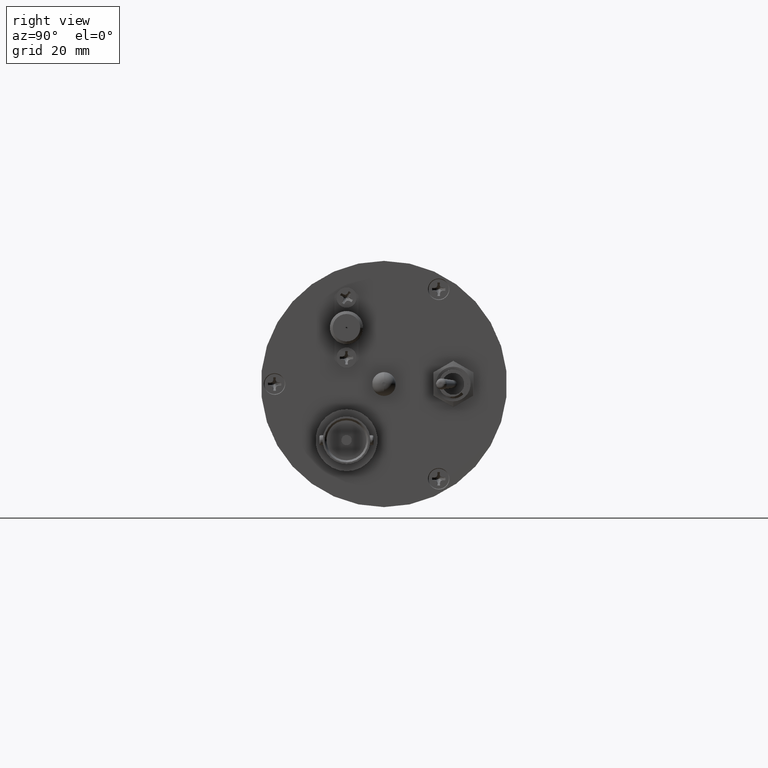
[diagram: clean part render]
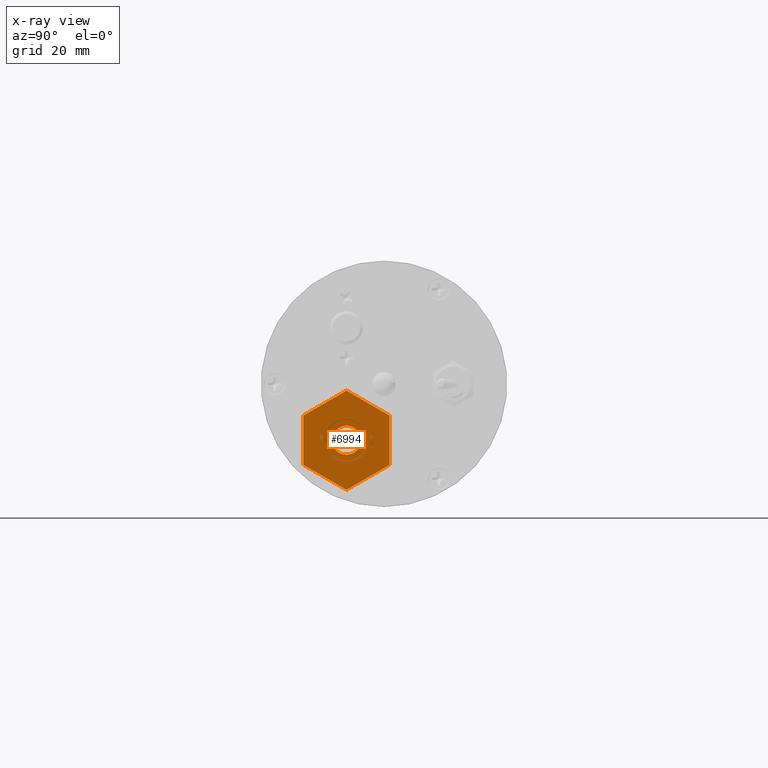
[diagram: x-ray — body ghosted, one internal face saturated and labeled with its STEP entity id]
A machine part, right view, then the same camera in x-ray: the body is ghosted and one INTERNAL B-rep face — a face not visible from any outside direction — is saturated and labeled: STEP entity #6994.
In plain terms, the highlighted planar face has unit normal (1, -0, -0).
Its self-contained STEP definition (entity closure, byte-faithful):
#234 = DIRECTION ( 'NONE',  ( 2.403703357978926900E-017, 0.8660254037842480800, 0.5000000000003300700 ) ) ;
#1294 = AXIS2_PLACEMENT_3D ( 'NONE', #72997, #48281, #9460 ) ;
#2827 = DIRECTION ( 'NONE',  ( -2.403703357978926900E-017, -0.8660254037842480800, 0.5000000000003300700 ) ) ;
#2902 = CARTESIAN_POINT ( 'NONE',  ( 50.66289461886625400, 36.66469927225279700, 25.90560134325451700 ) ) ;
#2968 = VERTEX_POINT ( 'NONE', #15565 ) ;
#5064 = FACE_OUTER_BOUND ( 'NONE', #60975, .T. ) ;
#6256 = VERTEX_POINT ( 'NONE', #18004 ) ;
#6447 = DIRECTION ( 'NONE',  ( -1.683656803805726100E-033, 2.022004307797137000E-017, -1.000000000000000000 ) ) ;
#6939 = VERTEX_POINT ( 'NONE', #7285 ) ;
#6994 = ADVANCED_FACE ( 'NONE', ( #26528, #5064 ), #73926, .F. ) ;
#7285 = CARTESIAN_POINT ( 'NONE',  ( 50.66289461886625400, 36.66469927225369900, 20.86827797959994200 ) ) ;
#9460 = DIRECTION ( 'NONE',  ( 0.0000000000000000000, 0.0000000000000000000, -1.000000000000000000 ) ) ;
#12018 = VECTOR ( 'NONE', #234, 1000.000000000000000 ) ;
#14159 = EDGE_CURVE ( 'NONE', #2968, #88140, #101685, .T. ) ;
#14585 = VECTOR ( 'NONE', #6447, 1000.000000000000000 ) ;
#15565 = CARTESIAN_POINT ( 'NONE',  ( 50.66289461886625400, 27.93979927225278500, 22.95920134325452000 ) ) ;
#15784 = LINE ( 'NONE', #62843, #14585 ) ;
#16156 = VERTEX_POINT ( 'NONE', #30502 ) ;
#18004 = CARTESIAN_POINT ( 'NONE',  ( 50.66289461886625400, 19.21489927225187000, 30.94292470690909600 ) ) ;
#19327 = ORIENTED_EDGE ( 'NONE', *, *, #100850, .F. ) ;
#25135 = LINE ( 'NONE', #27128, #80668 ) ;
#25570 = DIRECTION ( 'NONE',  ( -1.683656803805726100E-033, 2.022004307797137000E-017, -1.000000000000000000 ) ) ;
#26528 = FACE_BOUND ( 'NONE', #64305, .T. ) ;
#27128 = CARTESIAN_POINT ( 'NONE',  ( 50.66289461886625400, 36.66469927225279700, 30.94292470690751900 ) ) ;
#27810 = CARTESIAN_POINT ( 'NONE',  ( 50.66289461886625400, 27.93979927225278500, 25.90560134325451700 ) ) ;
#28469 = DIRECTION ( 'NONE',  ( 0.0000000000000000000, 0.0000000000000000000, -1.000000000000000000 ) ) ;
#28823 = DIRECTION ( 'NONE',  ( -1.000000000000000000, 2.775557561562890100E-017, -1.683656803805726100E-033 ) ) ;
#29500 = EDGE_CURVE ( 'NONE', #62427, #6939, #94130, .T. ) ;
#30502 = CARTESIAN_POINT ( 'NONE',  ( 50.66289461886625400, 19.21489927225278300, 20.86827797960151900 ) ) ;
#32257 = CARTESIAN_POINT ( 'NONE',  ( 50.66289461886625400, 27.93979927225278500, 35.98024807056452100 ) ) ;
#33296 = DIRECTION ( 'NONE',  ( -2.403703357978926900E-017, -0.8660254037842480800, -0.5000000000003300700 ) ) ;
#34625 = LINE ( 'NONE', #84513, #104007 ) ;
#36139 = DIRECTION ( 'NONE',  ( 2.403703357978926900E-017, 0.8660254037842480800, -0.5000000000003300700 ) ) ;
#36208 = EDGE_CURVE ( 'NONE', #56067, #6256, #82536, .T. ) ;
#37470 = ORIENTED_EDGE ( 'NONE', *, *, #63108, .F. ) ;
#41849 = DIRECTION ( 'NONE',  ( 1.000000000000000000, -2.775557561562890100E-017, -2.244875738407634100E-033 ) ) ;
#47847 = CARTESIAN_POINT ( 'NONE',  ( 50.66289461886625400, 27.93979927225278500, 15.83095461594451900 ) ) ;
#48281 = DIRECTION ( 'NONE',  ( -1.000000000000000000, 2.775557561562890100E-017, -1.683656803805726100E-033 ) ) ;
#49365 = EDGE_CURVE ( 'NONE', #52209, #56067, #25135, .T. ) ;
#50609 = CARTESIAN_POINT ( 'NONE',  ( 50.66289461886625400, 27.93979927225278500, 25.90560134325451700 ) ) ;
#51716 = ORIENTED_EDGE ( 'NONE', *, *, #49365, .F. ) ;
#52209 = VERTEX_POINT ( 'NONE', #86396 ) ;
#53975 = DIRECTION ( 'NONE',  ( 1.683656803805726100E-033, -2.022004307797137000E-017, 1.000000000000000000 ) ) ;
#56067 = VERTEX_POINT ( 'NONE', #64374 ) ;
#60890 = CIRCLE ( 'NONE', #1294, 2.946399999999998400 ) ;
#60975 = EDGE_LOOP ( 'NONE', ( #102769, #64050, #51716, #19327, #77567, #99473 ) ) ;
#61390 = EDGE_CURVE ( 'NONE', #16156, #62427, #34625, .T. ) ;
#62427 = VERTEX_POINT ( 'NONE', #79350 ) ;
#62843 = CARTESIAN_POINT ( 'NONE',  ( 50.66289461886625400, 19.21489927225278300, 25.90560134325451700 ) ) ;
#63108 = EDGE_CURVE ( 'NONE', #88140, #2968, #60890, .T. ) ;
#64050 = ORIENTED_EDGE ( 'NONE', *, *, #36208, .F. ) ;
#64305 = EDGE_LOOP ( 'NONE', ( #73947, #37470 ) ) ;
#64374 = CARTESIAN_POINT ( 'NONE',  ( 50.66289461886625400, 27.93979927225187200, 35.98024807056294300 ) ) ;
#70984 = CARTESIAN_POINT ( 'NONE',  ( 50.66289461886625400, 27.93979927225278500, 28.85200134325452100 ) ) ;
#72997 = CARTESIAN_POINT ( 'NONE',  ( 50.66289461886625400, 27.93979927225278500, 25.90560134325451700 ) ) ;
#73926 = PLANE ( 'NONE',  #81719 ) ;
#73947 = ORIENTED_EDGE ( 'NONE', *, *, #14159, .F. ) ;
#74160 = AXIS2_PLACEMENT_3D ( 'NONE', #27810, #28823, #28469 ) ;
#77567 = ORIENTED_EDGE ( 'NONE', *, *, #29500, .F. ) ;
#79350 = CARTESIAN_POINT ( 'NONE',  ( 50.66289461886625400, 27.93979927225324300, 15.83095461594530600 ) ) ;
#80058 = LINE ( 'NONE', #2902, #91437 ) ;
#80668 = VECTOR ( 'NONE', #2827, 1000.000000000000000 ) ;
#81390 = EDGE_CURVE ( 'NONE', #6256, #16156, #15784, .T. ) ;
#81719 = AXIS2_PLACEMENT_3D ( 'NONE', #50609, #41849, #25570 ) ;
#82536 = LINE ( 'NONE', #32257, #90181 ) ;
#84513 = CARTESIAN_POINT ( 'NONE',  ( 50.66289461886625400, 19.21489927225278300, 20.86827797960151900 ) ) ;
#86396 = CARTESIAN_POINT ( 'NONE',  ( 50.66289461886625400, 36.66469927225279700, 30.94292470690751900 ) ) ;
#88140 = VERTEX_POINT ( 'NONE', #70984 ) ;
#90181 = VECTOR ( 'NONE', #33296, 1000.000000000000000 ) ;
#91437 = VECTOR ( 'NONE', #53975, 1000.000000000000000 ) ;
#94130 = LINE ( 'NONE', #47847, #12018 ) ;
#99473 = ORIENTED_EDGE ( 'NONE', *, *, #61390, .F. ) ;
#100850 = EDGE_CURVE ( 'NONE', #6939, #52209, #80058, .T. ) ;
#101685 = CIRCLE ( 'NONE', #74160, 2.946399999999998400 ) ;
#102769 = ORIENTED_EDGE ( 'NONE', *, *, #81390, .F. ) ;
#104007 = VECTOR ( 'NONE', #36139, 1000.000000000000000 ) ;